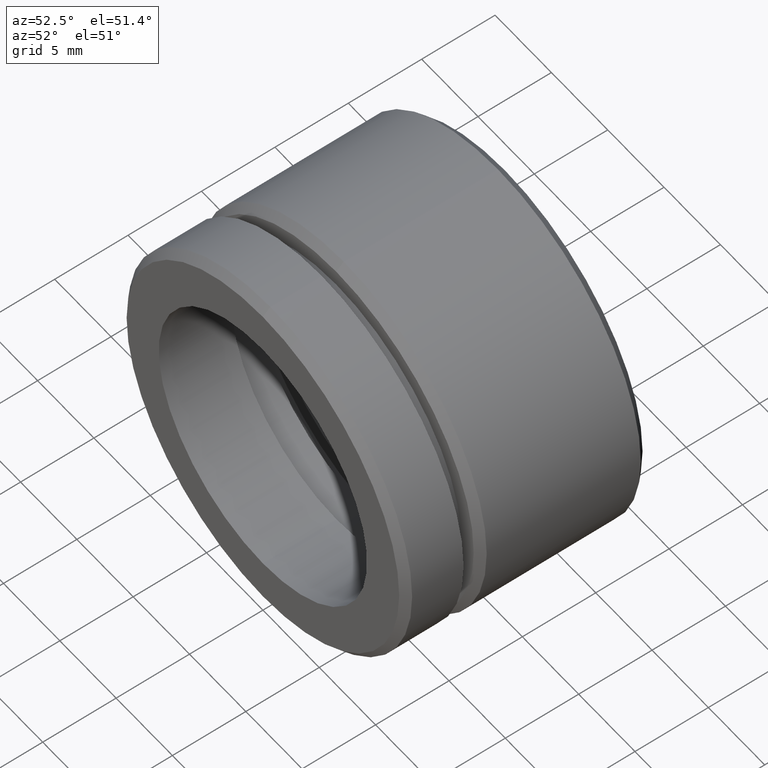
[diagram: clean part render]
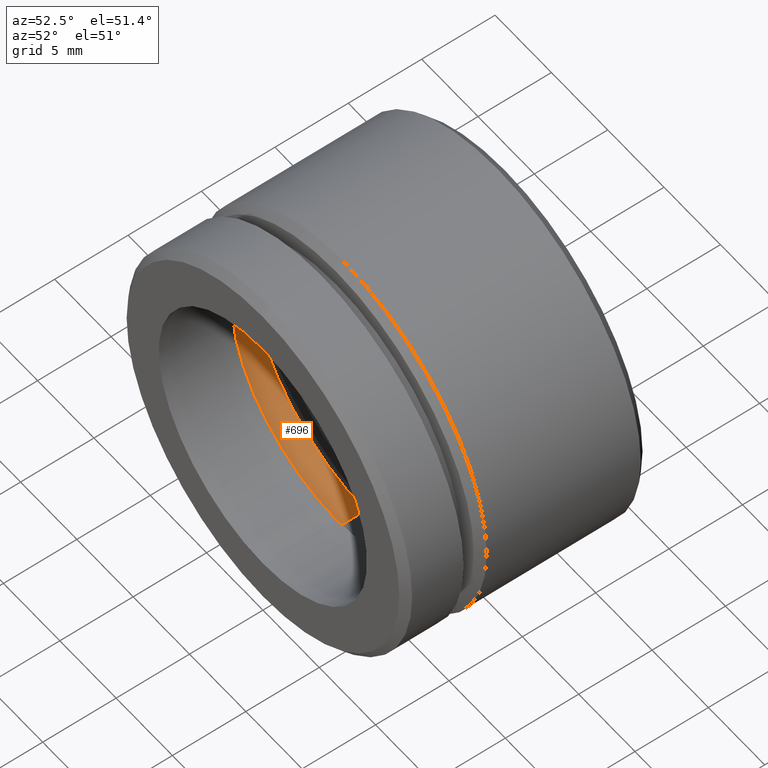
[diagram: same view with one face highlighted and labeled with its STEP entity id]
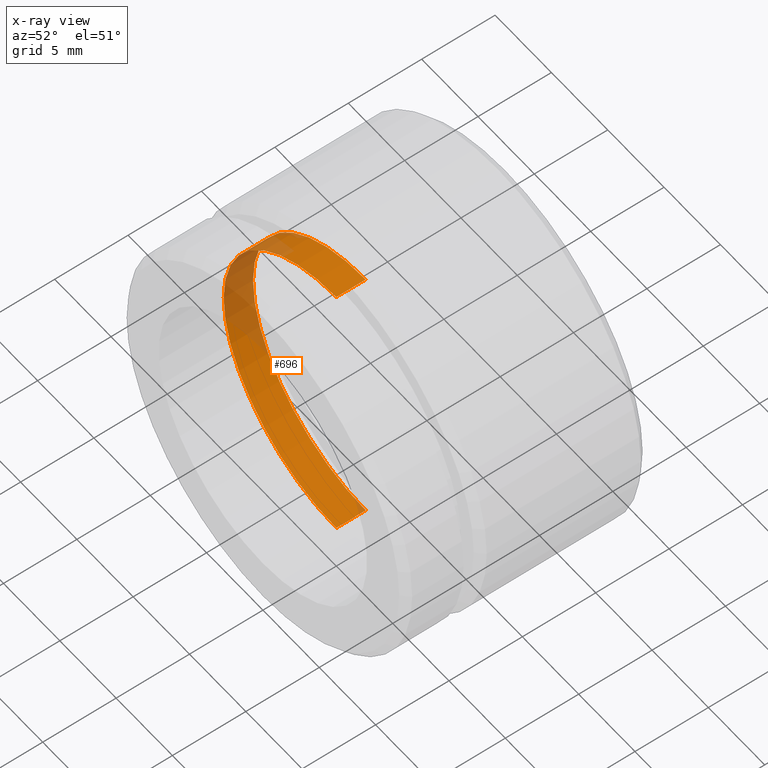
[diagram: x-ray of the same camera — body ghosted, the highlighted face saturated]
A machine part, auxiliary view. The second image highlights one B-rep face of the part: STEP entity #696.
The next image is the same camera in x-ray: the body ghosted, the highlighted face saturated — about 24% of this face is hidden behind the body in this view.
In plain terms, the highlighted cylindrical surface (partial cylindrical patch) has radius 10 mm, axis along (-0, -1, -0).
Its self-contained STEP definition (entity closure, byte-faithful):
#48 = CARTESIAN_POINT ( 'NONE',  ( 1.224646799147353300E-015, 0.0000000000000000000, 10.00000000000000000 ) ) ;
#67 = VERTEX_POINT ( 'NONE', #269 ) ;
#74 = CARTESIAN_POINT ( 'NONE',  ( 0.0000000000000000000, 7.000000000000000900, 0.0000000000000000000 ) ) ;
#132 = AXIS2_PLACEMENT_3D ( 'NONE', #469, #481, #655 ) ;
#142 = VECTOR ( 'NONE', #277, 1000.000000000000000 ) ;
#144 = AXIS2_PLACEMENT_3D ( 'NONE', #332, #255, #665 ) ;
#167 = EDGE_CURVE ( 'NONE', #307, #802, #219, .T. ) ;
#200 = EDGE_CURVE ( 'NONE', #546, #307, #762, .T. ) ;
#219 = CIRCLE ( 'NONE', #144, 10.00000000000000000 ) ;
#220 = EDGE_CURVE ( 'NONE', #546, #67, #328, .T. ) ;
#227 = CARTESIAN_POINT ( 'NONE',  ( 1.224646799147353300E-015, 7.000000000000000900, 10.00000000000000000 ) ) ;
#248 = CYLINDRICAL_SURFACE ( 'NONE', #132, 10.00000000000000000 ) ;
#255 = DIRECTION ( 'NONE',  ( -0.0000000000000000000, -1.000000000000000000, -0.0000000000000000000 ) ) ;
#269 = CARTESIAN_POINT ( 'NONE',  ( 0.0000000000000000000, 7.000000000000000900, -10.00000000000000000 ) ) ;
#277 = DIRECTION ( 'NONE',  ( -0.0000000000000000000, -1.000000000000000000, -0.0000000000000000000 ) ) ;
#278 = EDGE_CURVE ( 'NONE', #67, #802, #733, .T. ) ;
#284 = CARTESIAN_POINT ( 'NONE',  ( 1.224646799147353300E-015, 5.000000000000000000, 10.00000000000000000 ) ) ;
#307 = VERTEX_POINT ( 'NONE', #284 ) ;
#328 = CIRCLE ( 'NONE', #757, 10.00000000000000000 ) ;
#332 = CARTESIAN_POINT ( 'NONE',  ( 0.0000000000000000000, 5.000000000000000000, 0.0000000000000000000 ) ) ;
#430 = VECTOR ( 'NONE', #756, 1000.000000000000000 ) ;
#469 = CARTESIAN_POINT ( 'NONE',  ( 0.0000000000000000000, 0.0000000000000000000, 0.0000000000000000000 ) ) ;
#481 = DIRECTION ( 'NONE',  ( -0.0000000000000000000, -1.000000000000000000, -0.0000000000000000000 ) ) ;
#521 = DIRECTION ( 'NONE',  ( -0.0000000000000000000, -1.000000000000000000, -0.0000000000000000000 ) ) ;
#540 = ORIENTED_EDGE ( 'NONE', *, *, #167, .T. ) ;
#546 = VERTEX_POINT ( 'NONE', #227 ) ;
#591 = CARTESIAN_POINT ( 'NONE',  ( 0.0000000000000000000, 5.000000000000000000, -10.00000000000000000 ) ) ;
#604 = ORIENTED_EDGE ( 'NONE', *, *, #200, .T. ) ;
#655 = DIRECTION ( 'NONE',  ( 0.0000000000000000000, 0.0000000000000000000, -1.000000000000000000 ) ) ;
#657 = FACE_OUTER_BOUND ( 'NONE', #726, .T. ) ;
#665 = DIRECTION ( 'NONE',  ( 0.0000000000000000000, 0.0000000000000000000, -1.000000000000000000 ) ) ;
#682 = ORIENTED_EDGE ( 'NONE', *, *, #278, .F. ) ;
#696 = ADVANCED_FACE ( 'NONE', ( #657 ), #248, .F. ) ;
#726 = EDGE_LOOP ( 'NONE', ( #768, #604, #540, #682 ) ) ;
#733 = LINE ( 'NONE', #760, #142 ) ;
#756 = DIRECTION ( 'NONE',  ( -0.0000000000000000000, -1.000000000000000000, -0.0000000000000000000 ) ) ;
#757 = AXIS2_PLACEMENT_3D ( 'NONE', #74, #521, #851 ) ;
#760 = CARTESIAN_POINT ( 'NONE',  ( 0.0000000000000000000, 0.0000000000000000000, -10.00000000000000000 ) ) ;
#762 = LINE ( 'NONE', #48, #430 ) ;
#768 = ORIENTED_EDGE ( 'NONE', *, *, #220, .F. ) ;
#802 = VERTEX_POINT ( 'NONE', #591 ) ;
#851 = DIRECTION ( 'NONE',  ( 0.0000000000000000000, 0.0000000000000000000, -1.000000000000000000 ) ) ;